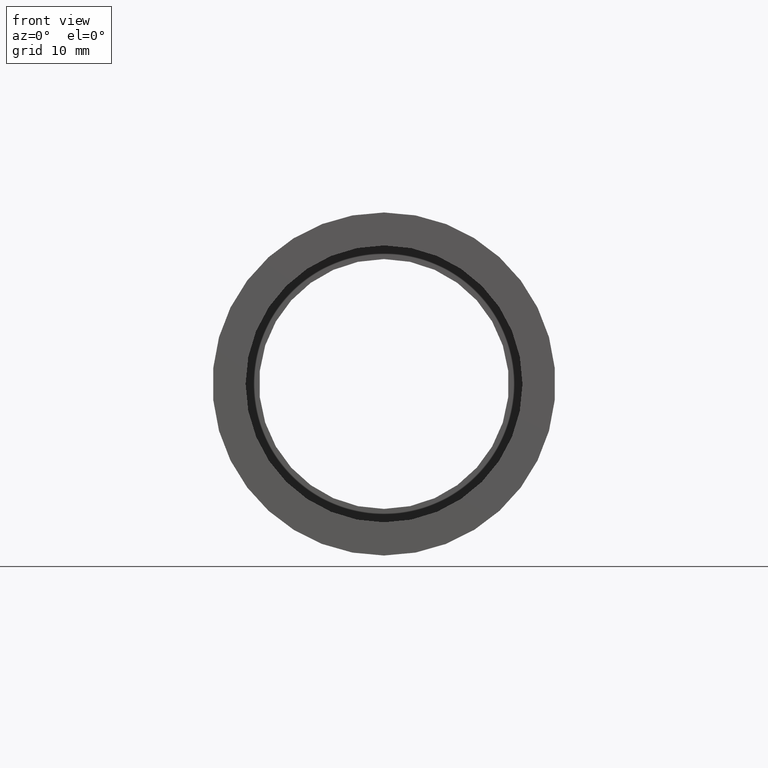
[diagram: clean part render]
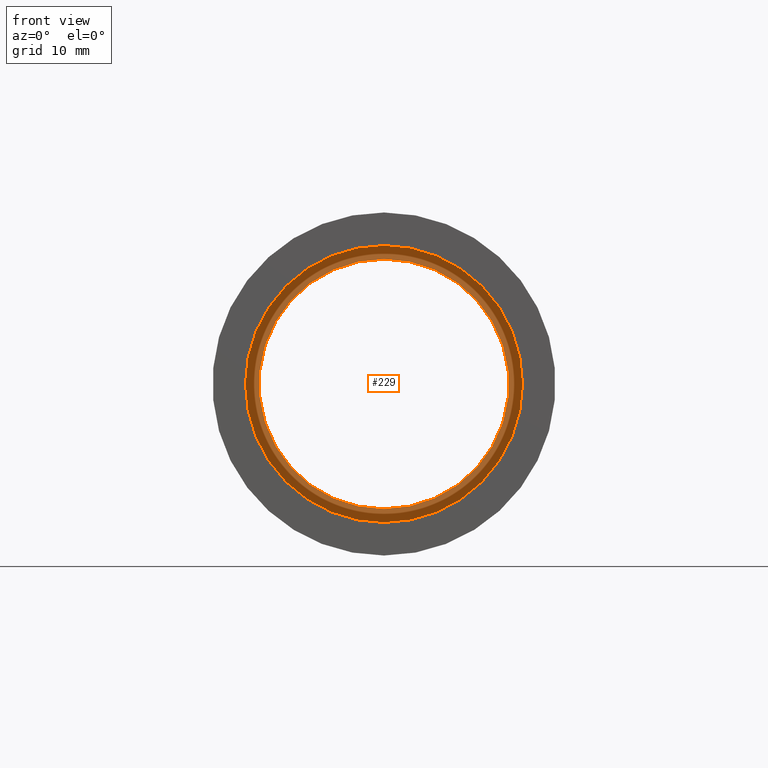
[diagram: same view with one face highlighted and labeled with its STEP entity id]
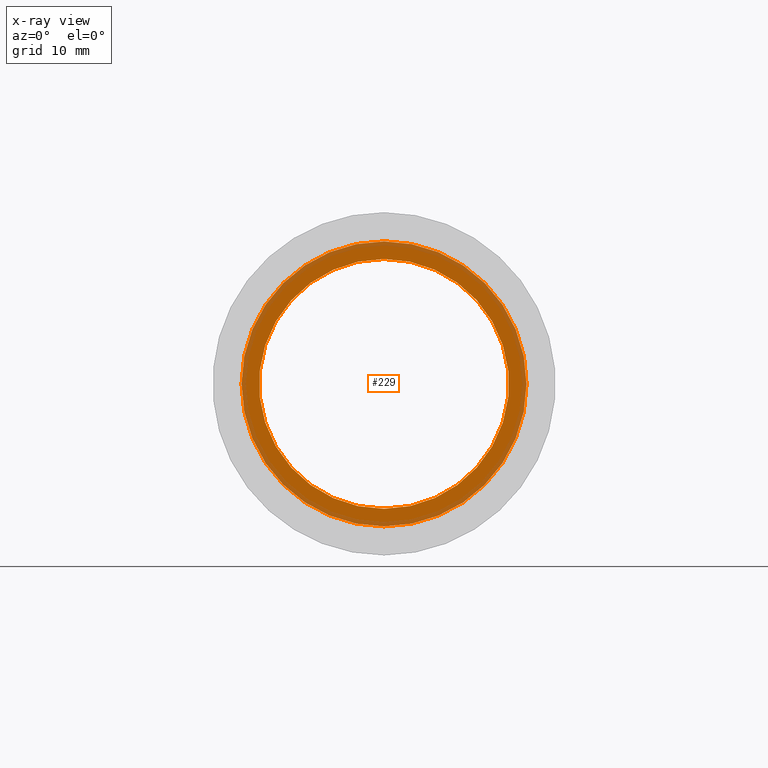
[diagram: x-ray of the same camera — body ghosted, the highlighted face saturated]
A machine part, front view. The second image highlights one B-rep face of the part: STEP entity #229.
The next image is the same camera in x-ray: the body ghosted, the highlighted face saturated — about 24% of this face is hidden behind the body in this view.
In plain terms, the highlighted planar face has unit normal (-0, 1, 0).
Its self-contained STEP definition (entity closure, byte-faithful):
#14 = CIRCLE ( 'NONE', #539, 21.10000000000001200 ) ;
#16 = EDGE_CURVE ( 'NONE', #79, #46, #527, .T. ) ;
#17 = PLANE ( 'NONE',  #179 ) ;
#28 = CARTESIAN_POINT ( 'NONE',  ( 0.0000000000000000000, 74.19999999999998900, 0.0000000000000000000 ) ) ;
#46 = VERTEX_POINT ( 'NONE', #346 ) ;
#63 = CIRCLE ( 'NONE', #590, 18.50000000000001100 ) ;
#66 = DIRECTION ( 'NONE',  ( 0.0000000000000000000, 0.0000000000000000000, 1.000000000000000000 ) ) ;
#75 = DIRECTION ( 'NONE',  ( -0.0000000000000000000, 1.000000000000000000, 0.0000000000000000000 ) ) ;
#79 = VERTEX_POINT ( 'NONE', #494 ) ;
#84 = DIRECTION ( 'NONE',  ( -0.0000000000000000000, 1.000000000000000000, -0.0000000000000000000 ) ) ;
#87 = CARTESIAN_POINT ( 'NONE',  ( 0.0000000000000000000, 74.19999999999998900, 18.50000000000001100 ) ) ;
#89 = CARTESIAN_POINT ( 'NONE',  ( 2.265596578422604600E-015, 74.19999999999998900, -18.50000000000001100 ) ) ;
#101 = CARTESIAN_POINT ( 'NONE',  ( 0.0000000000000000000, 74.19999999999998900, 0.0000000000000000000 ) ) ;
#115 = DIRECTION ( 'NONE',  ( 0.0000000000000000000, 0.0000000000000000000, 1.000000000000000000 ) ) ;
#123 = CIRCLE ( 'NONE', #467, 18.50000000000001100 ) ;
#132 = EDGE_LOOP ( 'NONE', ( #332, #318 ) ) ;
#150 = EDGE_CURVE ( 'NONE', #610, #611, #63, .T. ) ;
#167 = EDGE_CURVE ( 'NONE', #46, #79, #14, .T. ) ;
#179 = AXIS2_PLACEMENT_3D ( 'NONE', #358, #75, #115 ) ;
#216 = CARTESIAN_POINT ( 'NONE',  ( 0.0000000000000000000, 74.19999999999998900, 0.0000000000000000000 ) ) ;
#217 = CARTESIAN_POINT ( 'NONE',  ( 0.0000000000000000000, 74.19999999999998900, 0.0000000000000000000 ) ) ;
#229 = ADVANCED_FACE ( 'NONE', ( #239, #585 ), #17, .F. ) ;
#239 = FACE_OUTER_BOUND ( 'NONE', #399, .T. ) ;
#250 = DIRECTION ( 'NONE',  ( 0.0000000000000000000, 0.0000000000000000000, 1.000000000000000000 ) ) ;
#293 = ORIENTED_EDGE ( 'NONE', *, *, #16, .F. ) ;
#318 = ORIENTED_EDGE ( 'NONE', *, *, #534, .T. ) ;
#332 = ORIENTED_EDGE ( 'NONE', *, *, #150, .T. ) ;
#346 = CARTESIAN_POINT ( 'NONE',  ( 2.584004746200916600E-015, 74.19999999999998900, -21.10000000000001200 ) ) ;
#355 = DIRECTION ( 'NONE',  ( -0.0000000000000000000, 1.000000000000000000, -0.0000000000000000000 ) ) ;
#358 = CARTESIAN_POINT ( 'NONE',  ( 21.10000000000001200, 74.19999999999998900, 0.0000000000000000000 ) ) ;
#366 = ORIENTED_EDGE ( 'NONE', *, *, #167, .F. ) ;
#399 = EDGE_LOOP ( 'NONE', ( #293, #366 ) ) ;
#416 = DIRECTION ( 'NONE',  ( 0.0000000000000000000, 0.0000000000000000000, 1.000000000000000000 ) ) ;
#435 = DIRECTION ( 'NONE',  ( -0.0000000000000000000, 1.000000000000000000, -0.0000000000000000000 ) ) ;
#446 = DIRECTION ( 'NONE',  ( -0.0000000000000000000, 1.000000000000000000, -0.0000000000000000000 ) ) ;
#467 = AXIS2_PLACEMENT_3D ( 'NONE', #28, #84, #416 ) ;
#494 = CARTESIAN_POINT ( 'NONE',  ( 0.0000000000000000000, 74.19999999999998900, 21.10000000000001200 ) ) ;
#500 = AXIS2_PLACEMENT_3D ( 'NONE', #101, #435, #250 ) ;
#527 = CIRCLE ( 'NONE', #500, 21.10000000000001200 ) ;
#534 = EDGE_CURVE ( 'NONE', #611, #610, #123, .T. ) ;
#539 = AXIS2_PLACEMENT_3D ( 'NONE', #217, #355, #66 ) ;
#550 = DIRECTION ( 'NONE',  ( 0.0000000000000000000, 0.0000000000000000000, 1.000000000000000000 ) ) ;
#585 = FACE_BOUND ( 'NONE', #132, .T. ) ;
#590 = AXIS2_PLACEMENT_3D ( 'NONE', #216, #446, #550 ) ;
#610 = VERTEX_POINT ( 'NONE', #87 ) ;
#611 = VERTEX_POINT ( 'NONE', #89 ) ;